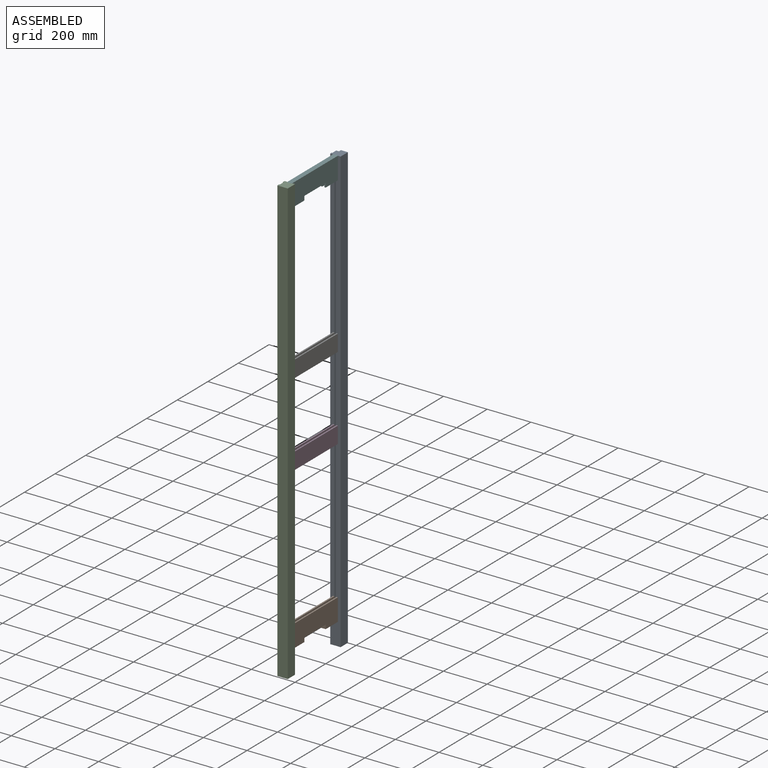
[diagram: assembled view]
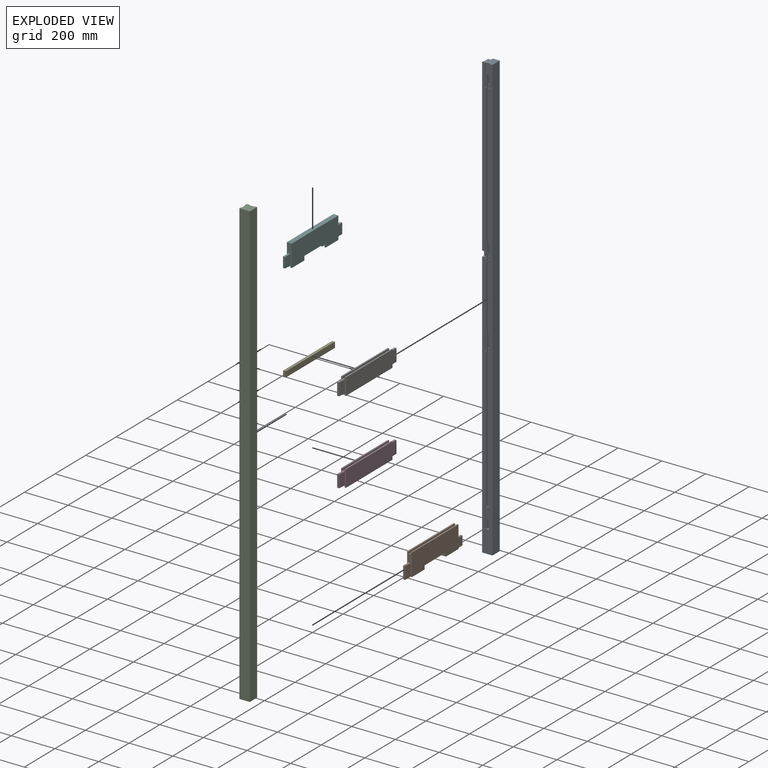
[diagram: exploded view]
GUIDED TOUR — MATED ASSEMBLY (Onshape document 7fe68d51b34048f1ba33e2a8, AutoMate assembly 7fe68d51b34048f1ba33e2a8_31bccd2d52288307c3215066_82dafb1759c48a622dc0e3d0_default)

This assembly has 7 components, labeled P0..P6 below (a component is one placed occurrence of a part; the same part can appear more than once), held together by 6 mates. A mate is a constraint between two components; its type names the relative motion it leaves free:
  FASTENED — locks the two components together rigidly (no relative motion).
Axis/direction vectors are unit vectors and 'through' points are millimeter coordinates, both in the assembly's world frame.

MATES
  1. FASTENED "Fastened 5": P1 <-> P0, direction (0.000, 1.000, 0.000) through (-23.81, 336.55, 122.24) mm
  2. FASTENED "Fastened 3": P6 <-> P2, direction (0.000, -1.000, 0.000) through (-23.81, -38.10, 1257.30) mm
  3. FASTENED "Fastened 4": P5 <-> P2, direction (0.000, -1.000, 0.000) through (-23.81, -38.10, 1963.74) mm
  4. FASTENED "Fastened 1": P1 <-> P2, direction (0.000, -1.000, 0.000) through (-23.81, -38.10, 130.17) mm
  5. FASTENED "Fastened 2": P3 <-> P2, direction (0.000, -1.000, 0.000) through (-23.81, -38.10, 876.30) mm
  6. FASTENED "Fastened 6": P4 <-> P0, direction (1.000, 0.000, 0.000) through (-41.27, 311.15, 1225.55) mm

ASSEMBLY ORDER
  1. P4 — the base component [order verified]
  2. P0 [order verified]
  3. P2 [order verified]
  4. P5 [order verified]
  5. P6 [order verified]
  6. P3 [order verified]
  7. P1 [order verified]
Order-tag legend:
  [order verified] — this step's position reverses a verified removal order: the component was checked to insert without passing through the ones already placed.

Of the 7 components, 4 carry the full construction recipe — the FeatureScript program that regenerates the part's solid from scratch; the rest are supplied as boundary geometry only.
Each toured component is shown spotlighted twice — in the assembled view, then in the exploded view, where a leader line traces a displaced component back to its assembled socket (saturated green if recipe-attached, orange if geometry-only; every other component desaturated gray) — followed by its recipe or geometry summary and the mates that hold it.
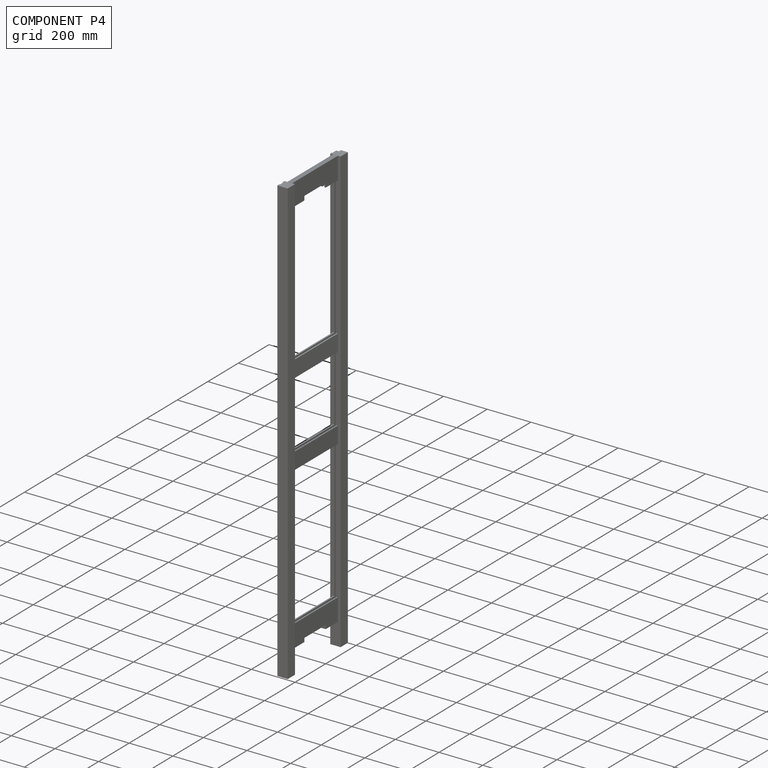
[diagram: component P4 — assembled]
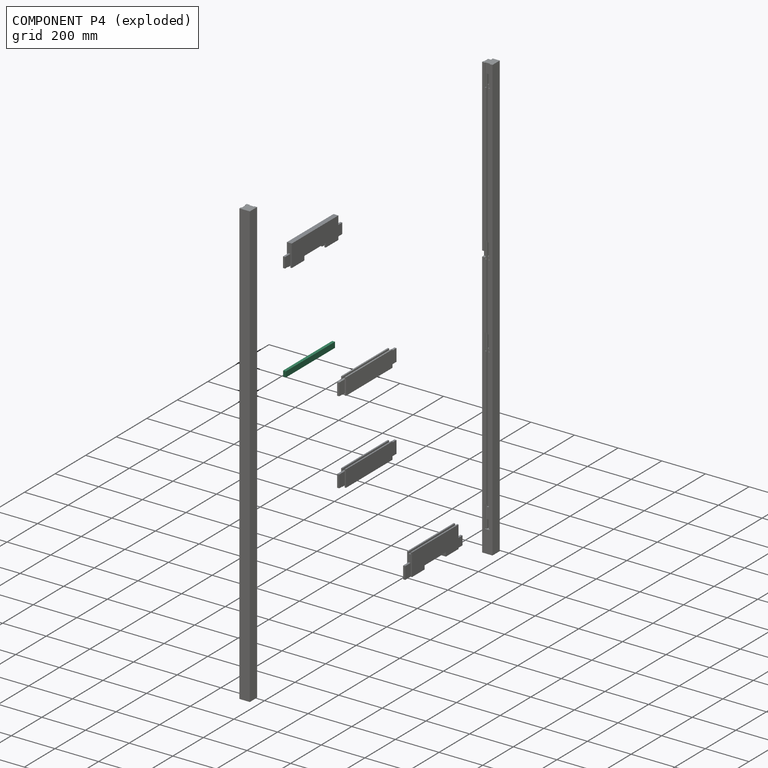
[diagram: component P4 — exploded]
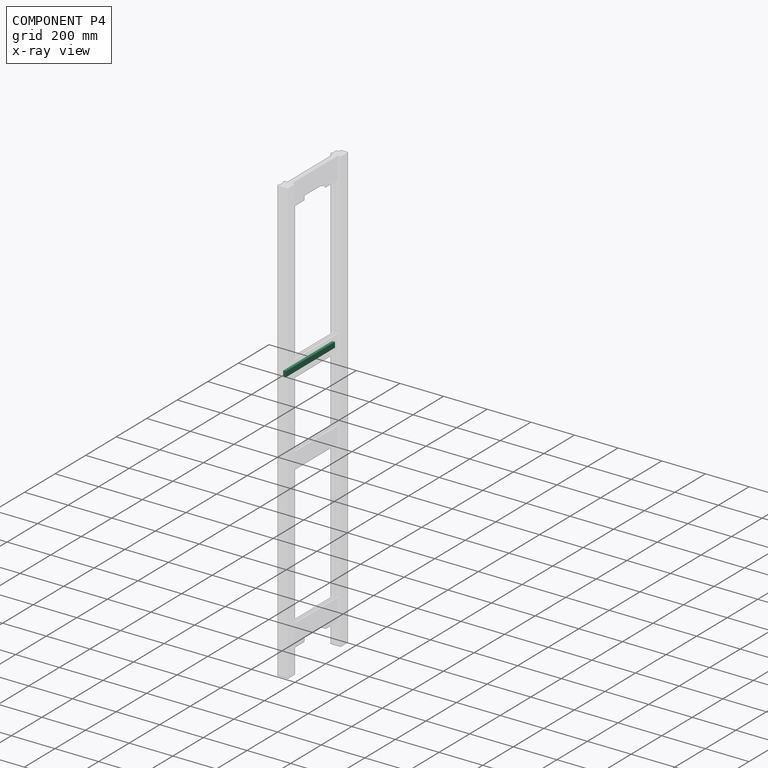
[diagram: component P4 — x-ray view]
COMPONENT P4 — recipe-attached (CADFS 00145059, mesh-verified: the recipe's output STEP matches this component's geometry to below the mesh-comparison resolution (tessellation chordal tolerance ~0.483 mm)).
Held by: FASTENED mate "Fastened 6" to P0.
Construction recipe (FeatureScript — the CAD program that rebuilds this solid; sketch coordinates are in the units given by the * unit suffixes, e.g. mm):

FeatureScript 2581;
import(path : "onshape/std/geometry.fs", version : "2581.0");
import(path : "onshape/std/common.fs", version : "2581.0");
const mm = millimeter;
const VERTEX = EntityType.VERTEX;
const EDGE = EntityType.EDGE;
const FACE = EntityType.FACE;
const BODY = EntityType.BODY;
function v(x, y){return vector(x, y);}
function OD(order){return orderDisambiguation(order);}
function OSD(set){return originalSetDisambiguation(set);}
function TD(topology){return topologyDisambiguation(topology);}
function TDD(query){return trueDependencyDisambiguation(query);}
function sQuery(a, b, c) {return sketchEntityQuery(a, b, c);}

annotation { "Feature Type Name" : "Feature", "Feature Type Description" : "" }
export const myFeature = defineFeature(function(context is Context, id is Id, definition is map)
    precondition{}
    {
        {
            var Q0;
            Q0=qCreatedBy(makeId("Front.planeOp"),FACE);
            var sketch = newSketch(context, id + "F0", { "sketchPlane" : qUnion([Q0])});
            skLineSegment(sketch, "E0.bottom", {"start": v(0, 0) * mm, "end": v(12.7, 0) * mm});
            skLineSegment(sketch, "E0.top", {"start": v(0, 25.4) * mm, "end": v(12.7, 25.4) * mm});
            skLineSegment(sketch, "E0.left", {"start": v(0, 0) * mm, "end": v(0, 25.4) * mm});
            skLineSegment(sketch, "E0.right", {"start": v(12.7, 0) * mm, "end": v(12.7, 25.4) * mm});
            skSolve(sketch);
        }
        {
            var Q0;
            Q0=makeQuery(id+"F0.imprint","IMPRINT",FACE,{"disambiguationData":[TD([[makeQuery(id+"F0.imprint","IMPRINT",EDGE,{"derivedFrom":sQuery(id+"F0.wireOp",EDGE,"E0.bottom")}),1.0]])]});
            extrude(context, id + "F1", {"entities" : qUnion([Q0]), "depth" : 320.67 * mm});
        }
    });
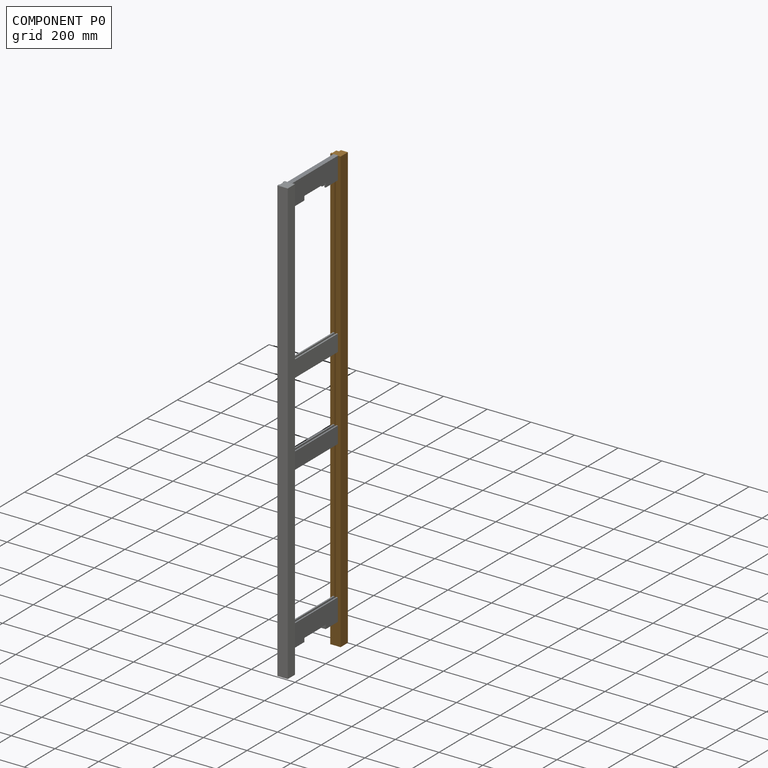
[diagram: component P0 — assembled]
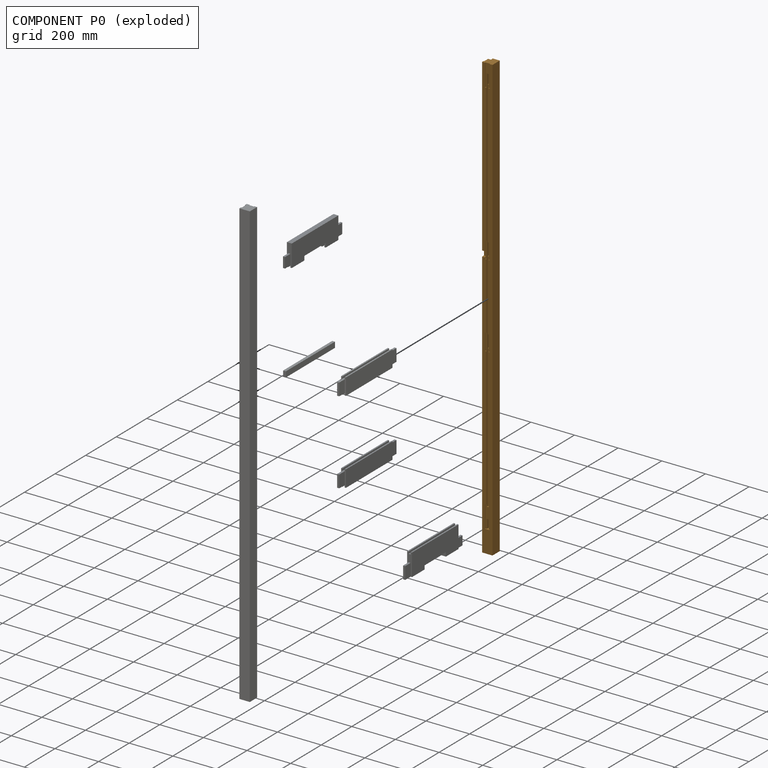
[diagram: component P0 — exploded]
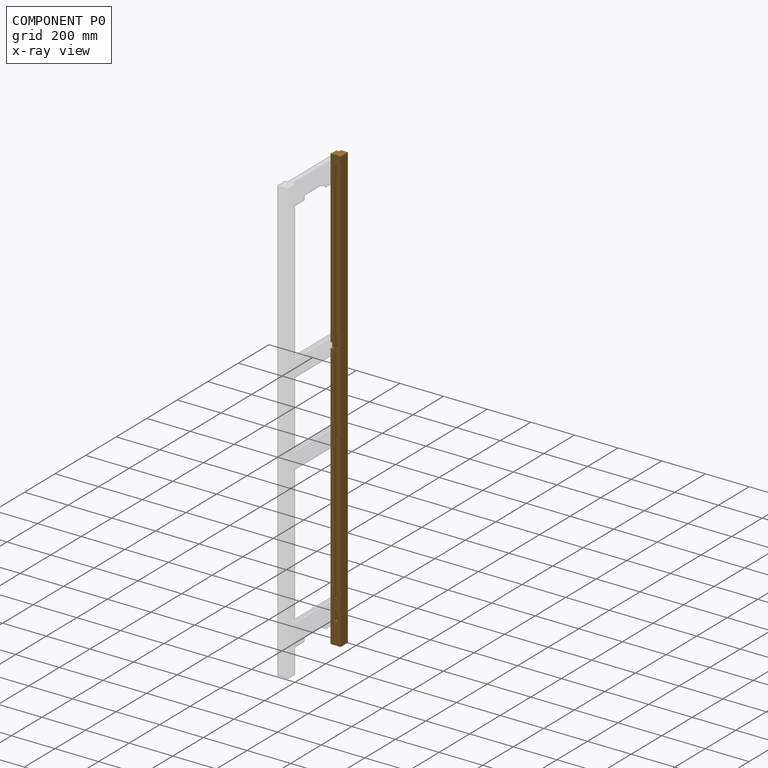
[diagram: component P0 — x-ray view]
COMPONENT P0 — geometry summary (no construction recipe available for this part):
  bounding box: 2032.0 x 47.6 x 47.6 mm
  B-rep topology: 1 solid, 91 faces, 519 edges
  volume: 3940840 mm^3 (86% of its bounding box)
Held by: FASTENED mate "Fastened 5" to P1; FASTENED mate "Fastened 6" to P4.
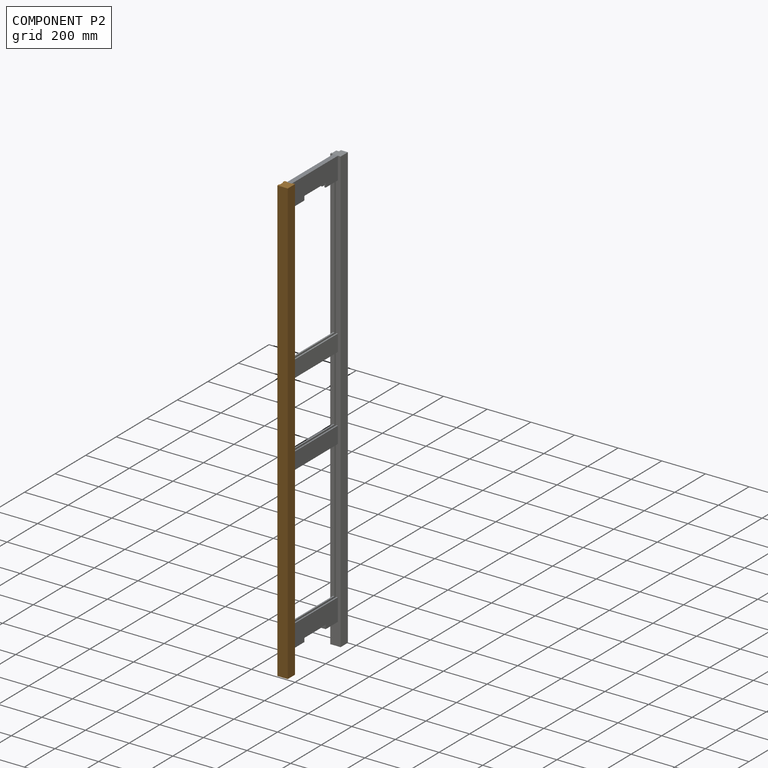
[diagram: component P2 — assembled]
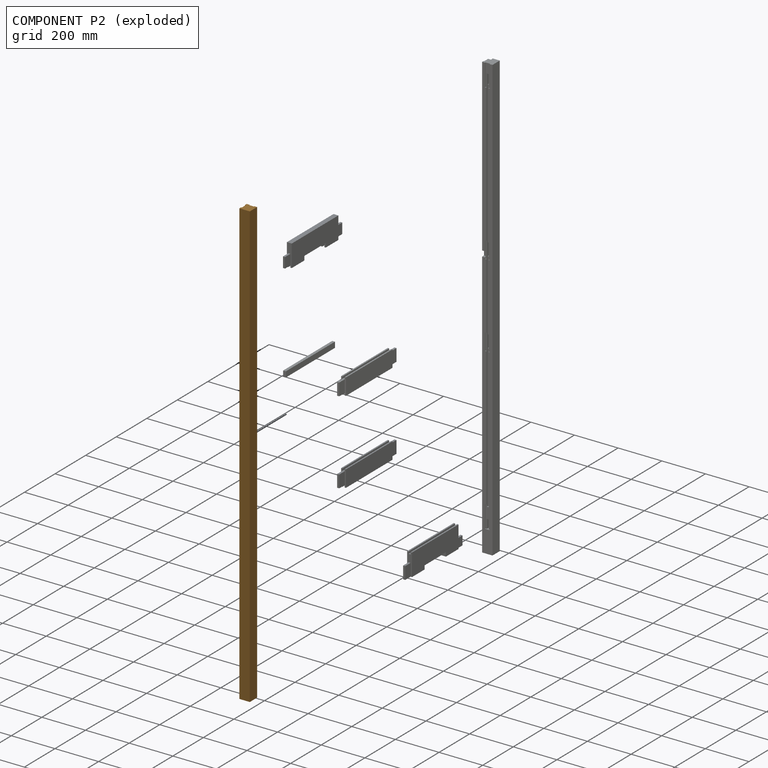
[diagram: component P2 — exploded]
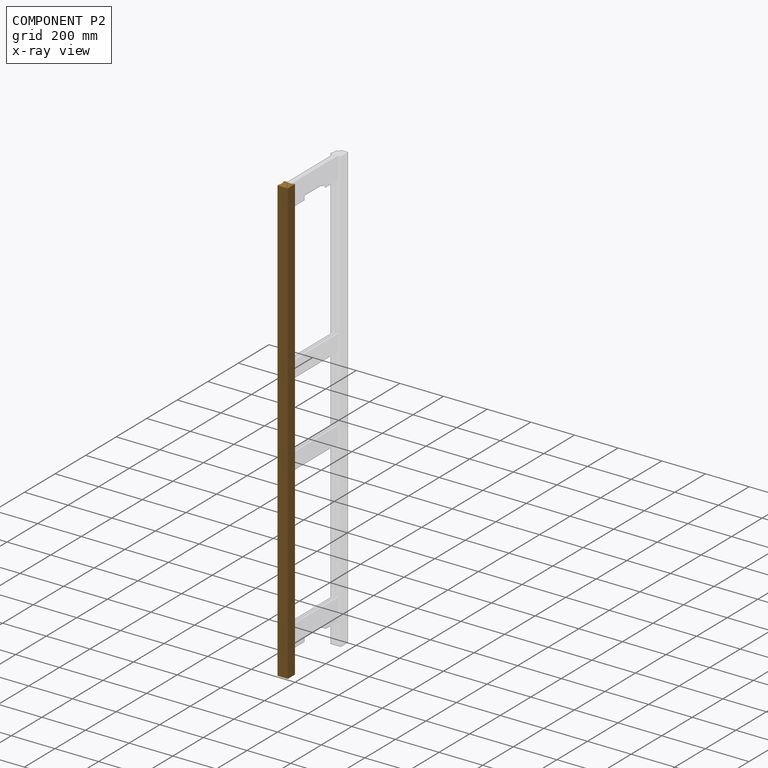
[diagram: component P2 — x-ray view]
COMPONENT P2 — geometry summary (no construction recipe available for this part):
  bounding box: 2032.0 x 47.6 x 47.6 mm
  B-rep topology: 1 solid, 88 faces, 494 edges
  volume: 4115515 mm^3 (89% of its bounding box)
  symmetry: 6-fold rotationally symmetric about the z axis; mirror-symmetric across its x mid-plane, y mid-plane
Held by: FASTENED mate "Fastened 3" to P6; FASTENED mate "Fastened 4" to P5; FASTENED mate "Fastened 1" to P1; FASTENED mate "Fastened 2" to P3.
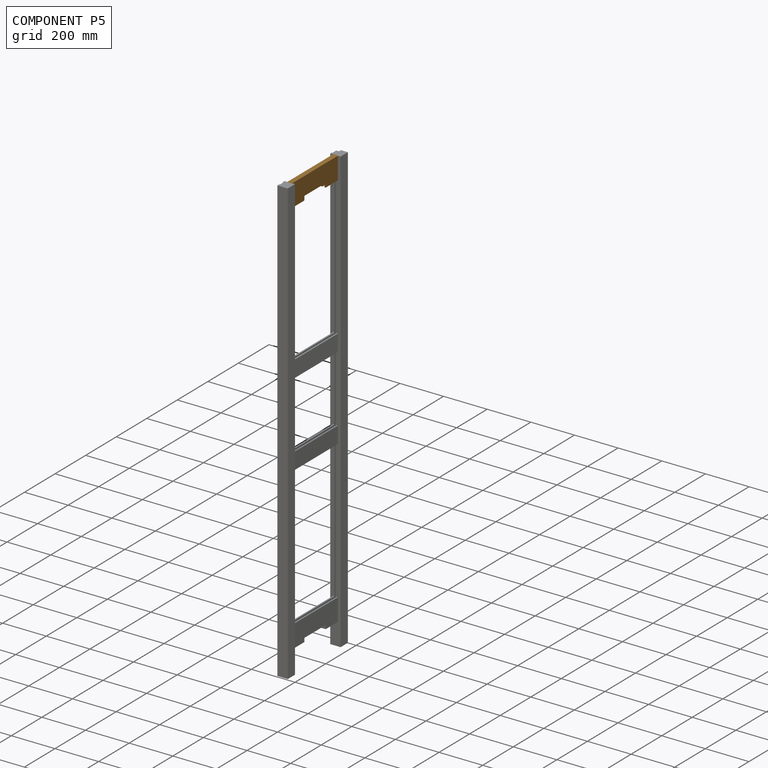
[diagram: component P5 — assembled]
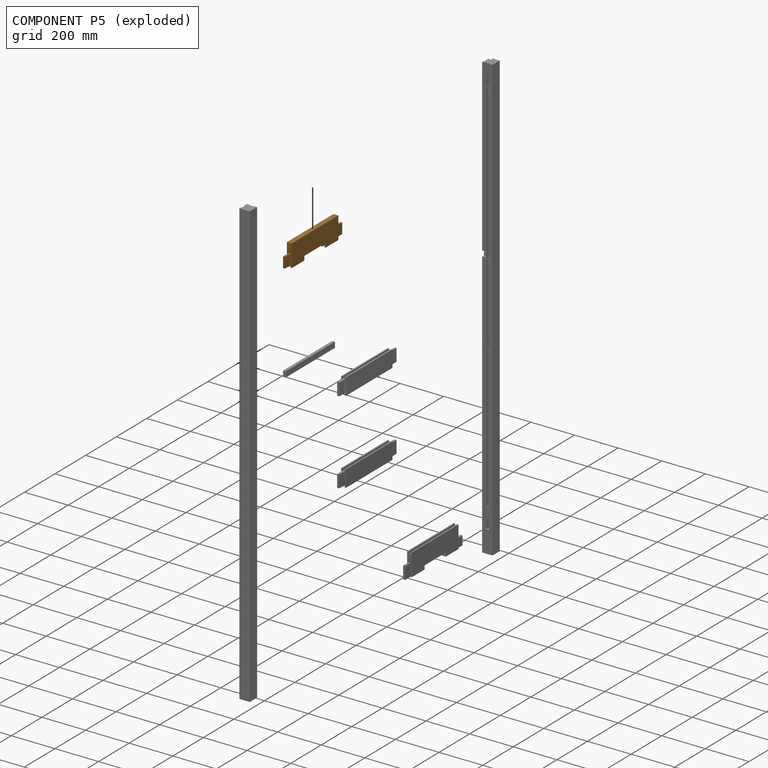
[diagram: component P5 — exploded]
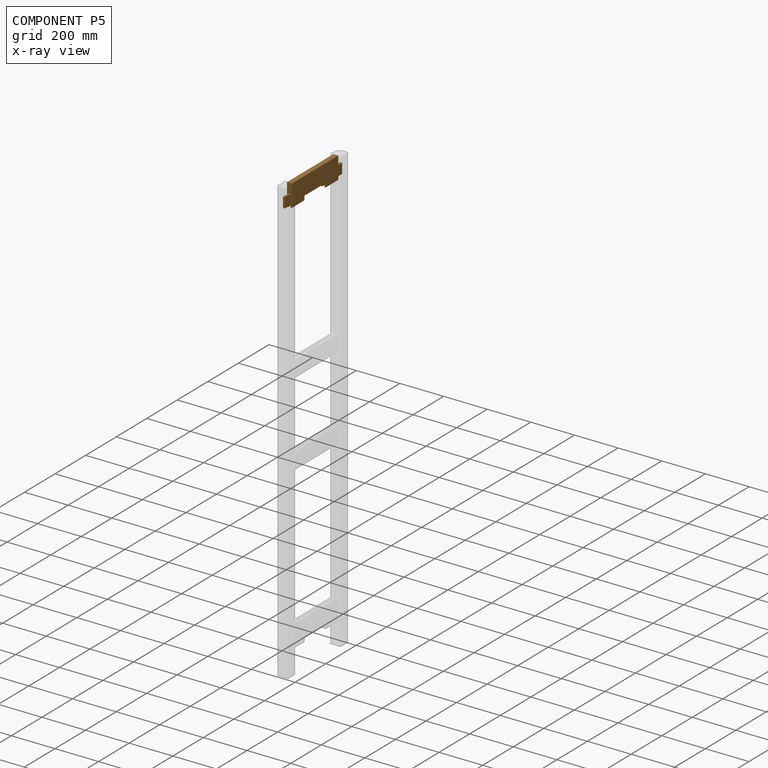
[diagram: component P5 — x-ray view]
COMPONENT P5 — geometry summary (no construction recipe available for this part):
  bounding box: 374.7 x 101.6 x 22.2 mm
  B-rep topology: 1 solid, 30 faces, 160 edges
  volume: 629686 mm^3 (74% of its bounding box)
  symmetry: 2-fold rotationally symmetric about the z axis; mirror-symmetric across its x mid-plane, y mid-plane
Held by: FASTENED mate "Fastened 4" to P2.
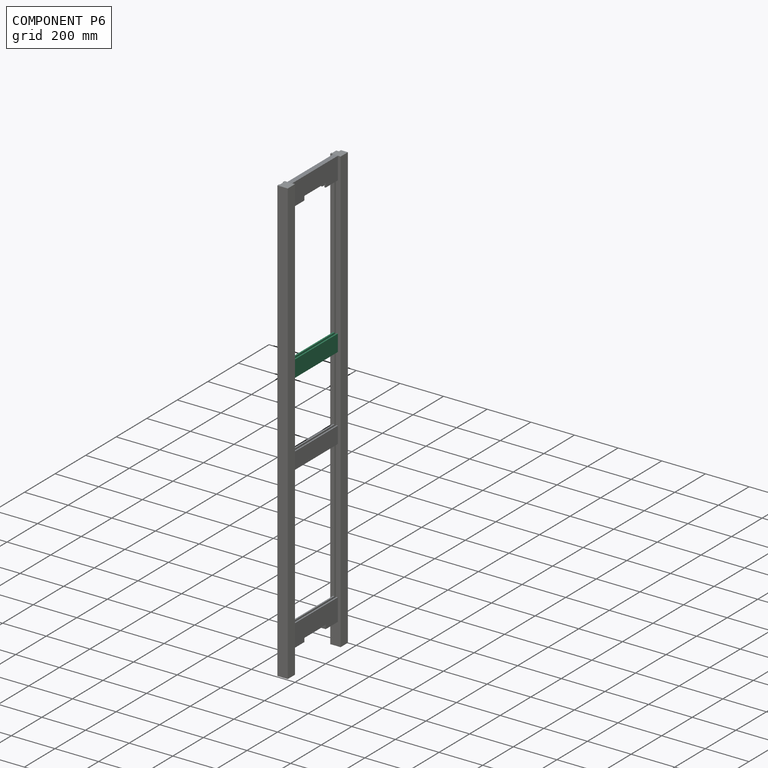
[diagram: component P6 — assembled]
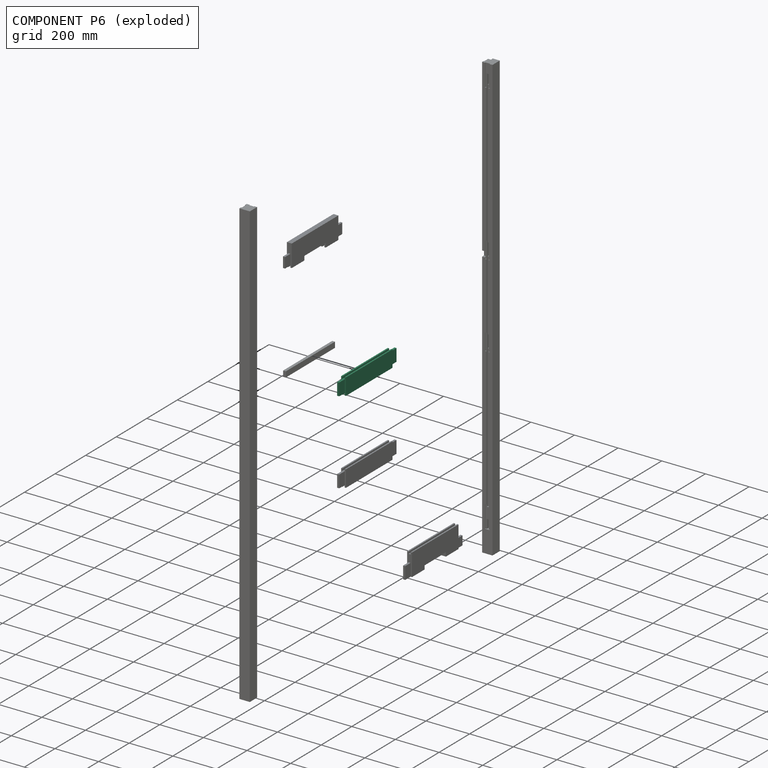
[diagram: component P6 — exploded]
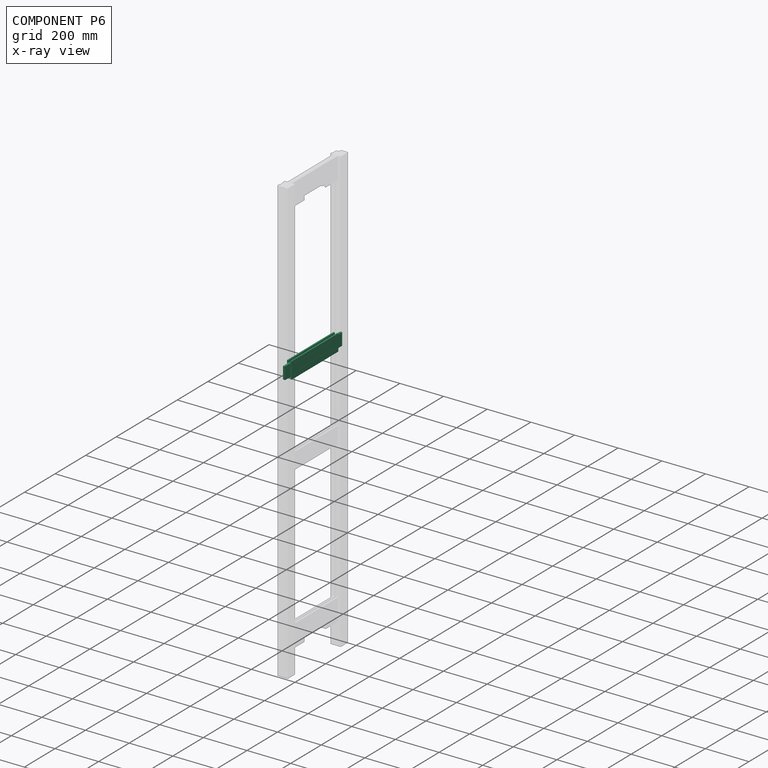
[diagram: component P6 — x-ray view]
COMPONENT P6 — same part as P3 (CADFS 00145066); its construction recipe is shown at P3.
Held by: FASTENED mate "Fastened 3" to P2.
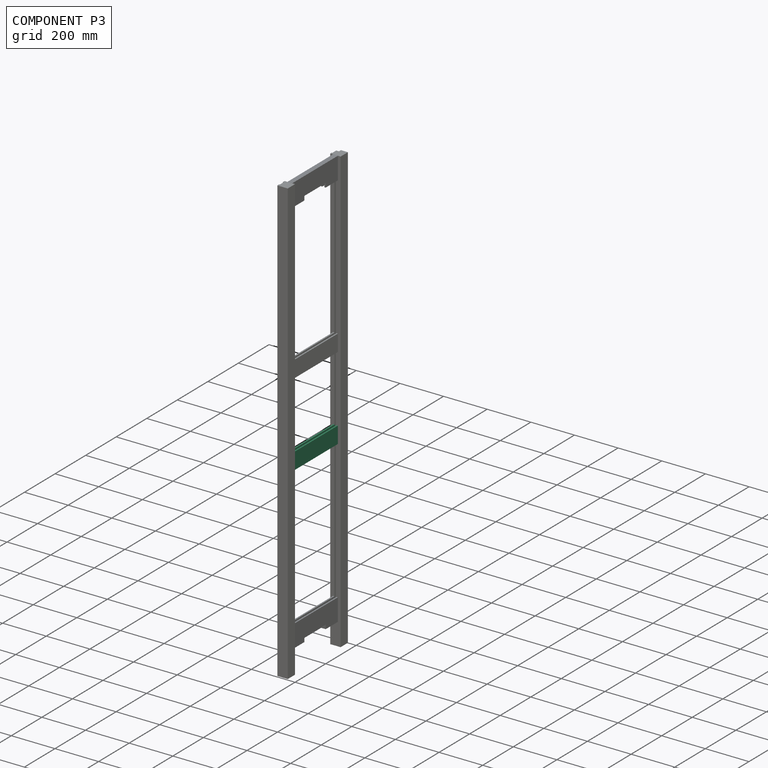
[diagram: component P3 — assembled]
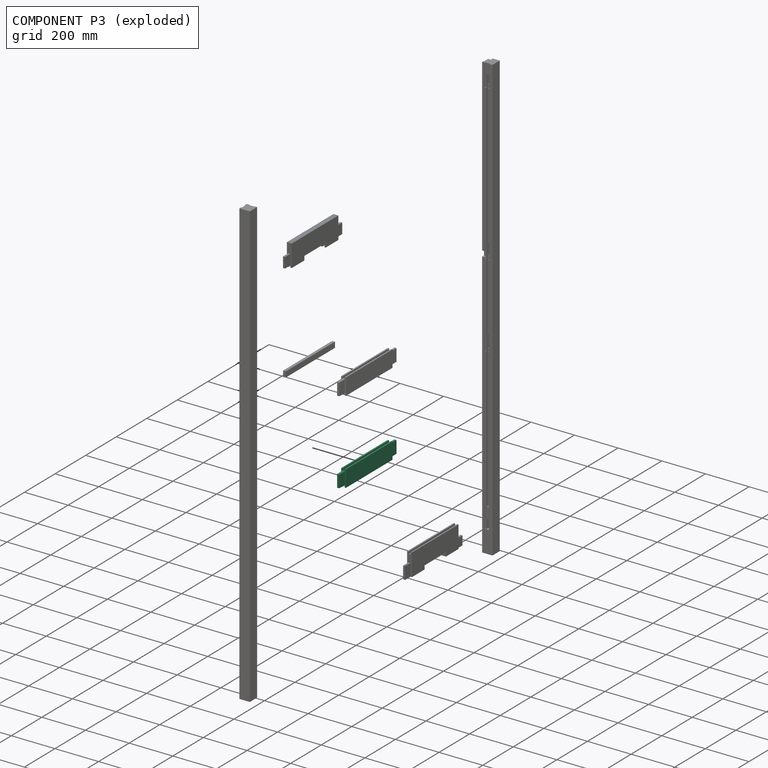
[diagram: component P3 — exploded]
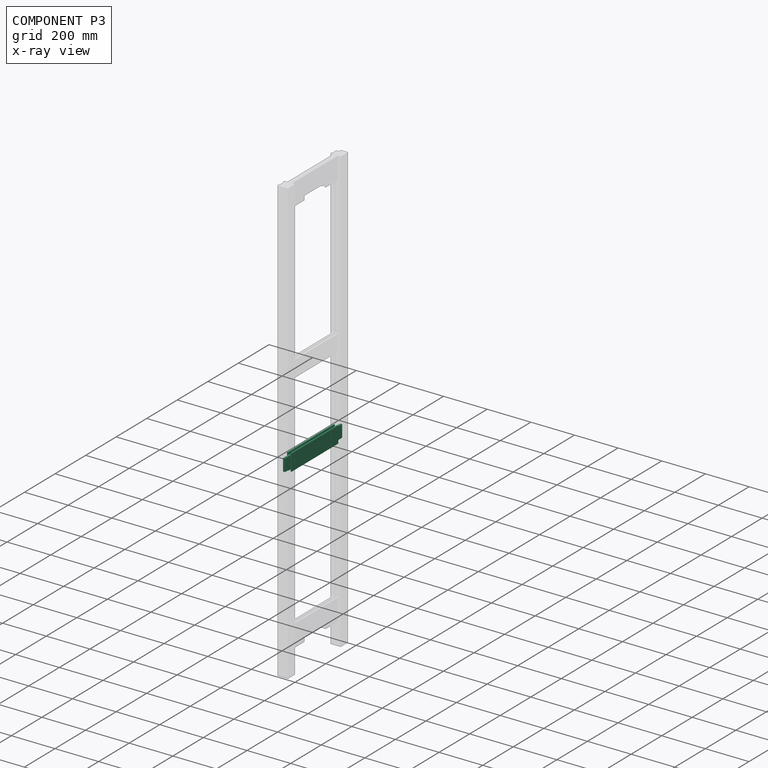
[diagram: component P3 — x-ray view]
COMPONENT P3 — recipe-attached (CADFS 00145066, mesh-verified: the recipe's output STEP matches this component's geometry to below the mesh-comparison resolution (tessellation chordal tolerance ~0.574 mm)).
Held by: FASTENED mate "Fastened 2" to P2.
Construction recipe (FeatureScript — the CAD program that rebuilds this solid; sketch coordinates are in the units given by the * unit suffixes, e.g. mm):

FeatureScript 2581;
import(path : "onshape/std/geometry.fs", version : "2581.0");
import(path : "onshape/std/common.fs", version : "2581.0");
const mm = millimeter;
const VERTEX = EntityType.VERTEX;
const EDGE = EntityType.EDGE;
const FACE = EntityType.FACE;
const BODY = EntityType.BODY;
function v(x, y){return vector(x, y);}
function OD(order){return orderDisambiguation(order);}
function OSD(set){return originalSetDisambiguation(set);}
function TD(topology){return topologyDisambiguation(topology);}
function TDD(query){return trueDependencyDisambiguation(query);}
function sQuery(a, b, c) {return sketchEntityQuery(a, b, c);}

annotation { "Feature Type Name" : "Feature", "Feature Type Description" : "" }
export const myFeature = defineFeature(function(context is Context, id is Id, definition is map)
    precondition{}
    {
        {
            var Q0;
            Q0=qCreatedBy(makeId("Front.planeOp"),FACE);
            var sketch = newSketch(context, id + "F0", { "sketchPlane" : qUnion([Q0])});
            skLineSegment(sketch, "E0.bottom", {"start": v(0, 0) * mm, "end": v(374.65, 0) * mm});
            skLineSegment(sketch, "E0.top", {"start": v(0, 76.2) * mm, "end": v(374.65, 76.2) * mm});
            skLineSegment(sketch, "E0.left", {"start": v(0, 0) * mm, "end": v(0, 76.2) * mm});
            skLineSegment(sketch, "E0.right", {"start": v(374.65, 0) * mm, "end": v(374.65, 76.2) * mm});
            skSolve(sketch);
        }
        {
            var Q0;
            Q0=makeQuery(id+"F0.imprint","IMPRINT",FACE,{"disambiguationData":[TD([[makeQuery(id+"F0.imprint","IMPRINT",EDGE,{"derivedFrom":sQuery(id+"F0.wireOp",EDGE,"E0.bottom")}),1.0]])]});
            extrude(context, id + "F1", {"entities" : qUnion([Q0]), "depth" : 22.22 * mm});
        }
        {
            var Q0;
            Q0=makeQuery(id+"F1.opExtrude","SWEPT_FACE",FACE,{"disambiguationData":[OSD([sQuery(id+"F0.wireOp",EDGE,"E0.top")])]});
            var sketch = newSketch(context, id + "F2", { "sketchPlane" : qUnion([Q0])});
            skLineSegment(sketch, "E1.bottom", {"start": v(0, 0) * mm, "end": v(34.93, 0) * mm});
            skLineSegment(sketch, "E1.top", {"start": v(0, -6.35) * mm, "end": v(34.93, -6.35) * mm});
            skLineSegment(sketch, "E1.left", {"start": v(0, 0) * mm, "end": v(0, -6.35) * mm});
            skLineSegment(sketch, "E1.right", {"start": v(34.93, 0) * mm, "end": v(34.93, -6.35) * mm});
            skLineSegment(sketch, "E2.bottom", {"start": v(0, -22.23) * mm, "end": v(34.93, -22.23) * mm});
            skLineSegment(sketch, "E2.top", {"start": v(0, -15.88) * mm, "end": v(34.93, -15.88) * mm});
            skLineSegment(sketch, "E2.left", {"start": v(0, -22.23) * mm, "end": v(0, -15.88) * mm});
            skLineSegment(sketch, "E2.right", {"start": v(34.93, -22.23) * mm, "end": v(34.93, -15.88) * mm});
            skLineSegment(sketch, "E3.bottom", {"start": v(339.73, -6.35) * mm, "end": v(374.65, -6.35) * mm});
            skLineSegment(sketch, "E3.top", {"start": v(339.73, 0) * mm, "end": v(374.65, 0) * mm});
            skLineSegment(sketch, "E3.left", {"start": v(339.73, -6.35) * mm, "end": v(339.73, 0) * mm});
            skLineSegment(sketch, "E3.right", {"start": v(374.65, -6.35) * mm, "end": v(374.65, 0) * mm});
            skLineSegment(sketch, "E4.bottom", {"start": v(339.73, -15.87) * mm, "end": v(374.65, -15.87) * mm});
            skLineSegment(sketch, "E4.top", {"start": v(339.73, -22.23) * mm, "end": v(374.65, -22.23) * mm});
            skLineSegment(sketch, "E4.left", {"start": v(339.73, -15.87) * mm, "end": v(339.73, -22.23) * mm});
            skLineSegment(sketch, "E4.right", {"start": v(374.65, -15.87) * mm, "end": v(374.65, -22.23) * mm});
            skLineSegment(sketch, "E5", {"start": v(34.93, -6.35) * mm, "end": v(339.73, -6.35) * mm});
            skLineSegment(sketch, "E6", {"start": v(34.93, -15.88) * mm, "end": v(339.73, -15.87) * mm});
            skLineSegment(sketch, "E7", {"start": v(34.93, -6.35) * mm, "end": v(34.93, -15.88) * mm});
            skLineSegment(sketch, "E8", {"start": v(339.73, -6.35) * mm, "end": v(339.73, -15.87) * mm});
            skSolve(sketch);
        }
        {
            var Q0;
            Q0=makeQuery(id+"F2.imprint","IMPRINT",FACE,{"disambiguationData":[TD([[makeQuery(id+"F2.imprint","IMPRINT",EDGE,{"derivedFrom":sQuery(id+"F2.wireOp",EDGE,"E1.bottom")}),-1.0]])]});
            var Q1;
            Q1=makeQuery(id+"F2.imprint","IMPRINT",FACE,{"disambiguationData":[TD([[makeQuery(id+"F2.imprint","IMPRINT",EDGE,{"derivedFrom":sQuery(id+"F2.wireOp",EDGE,"E2.bottom")}),1.0]])]});
            var Q2;
            Q2=makeQuery(id+"F2.imprint","IMPRINT",FACE,{"disambiguationData":[TD([[makeQuery(id+"F2.imprint","IMPRINT",EDGE,{"derivedFrom":sQuery(id+"F2.wireOp",EDGE,"E3.bottom")}),1.0]])]});
            var Q3;
            Q3=makeQuery(id+"F2.imprint","IMPRINT",FACE,{"disambiguationData":[TD([[makeQuery(id+"F2.imprint","IMPRINT",EDGE,{"derivedFrom":sQuery(id+"F2.wireOp",EDGE,"E4.bottom")}),-1.0]])]});
            extrude(context, id + "F3", {"entities" : qUnion([Q0, Q1, Q2, Q3]), "operationType" : NewBodyOperationType.REMOVE, "endBound" : BoundingType.UP_TO_NEXT, "oppositeDirection" : true, "depth" : 25.4 * mm});
        }
        {
            var Q0;
            Q0=makeQuery(id+"F1.opExtrude","SWEPT_FACE",FACE,{"disambiguationData":[OSD([sQuery(id+"F0.wireOp",EDGE,"E0.left")])]});
            var sketch = newSketch(context, id + "F4", { "sketchPlane" : qUnion([Q0])});
            skLineSegment(sketch, "E9.bottom", {"start": v(6.35, 0) * mm, "end": v(15.88, 0) * mm});
            skLineSegment(sketch, "E9.top", {"start": v(6.35, 9.53) * mm, "end": v(15.88, 9.53) * mm});
            skLineSegment(sketch, "E9.left", {"start": v(6.35, 0) * mm, "end": v(6.35, 9.53) * mm});
            skLineSegment(sketch, "E9.right", {"start": v(15.88, 0) * mm, "end": v(15.88, 9.52) * mm});
            skLineSegment(sketch, "E10.bottom", {"start": v(6.35, 76.2) * mm, "end": v(15.88, 76.2) * mm});
            skLineSegment(sketch, "E10.top", {"start": v(6.35, 66.67) * mm, "end": v(15.88, 66.67) * mm});
            skLineSegment(sketch, "E10.left", {"start": v(6.35, 76.2) * mm, "end": v(6.35, 66.67) * mm});
            skLineSegment(sketch, "E10.right", {"start": v(15.88, 76.2) * mm, "end": v(15.88, 66.67) * mm});
            skSolve(sketch);
        }
        {
            var Q0;
            Q0=makeQuery(id+"F4.imprint","IMPRINT",FACE,{"disambiguationData":[TD([[makeQuery(id+"F4.imprint","IMPRINT",EDGE,{"derivedFrom":sQuery(id+"F4.wireOp",EDGE,"E10.bottom")}),1.0]])]});
            var Q1;
            Q1=makeQuery(id+"F4.imprint","IMPRINT",FACE,{"disambiguationData":[TD([[makeQuery(id+"F4.imprint","IMPRINT",EDGE,{"derivedFrom":sQuery(id+"F4.wireOp",EDGE,"E9.bottom")}),-1.0]])]});
            extrude(context, id + "F5", {"entities" : qUnion([Q0, Q1]), "operationType" : NewBodyOperationType.REMOVE, "endBound" : BoundingType.UP_TO_NEXT, "oppositeDirection" : true, "depth" : 25.4 * mm});
        }
    });
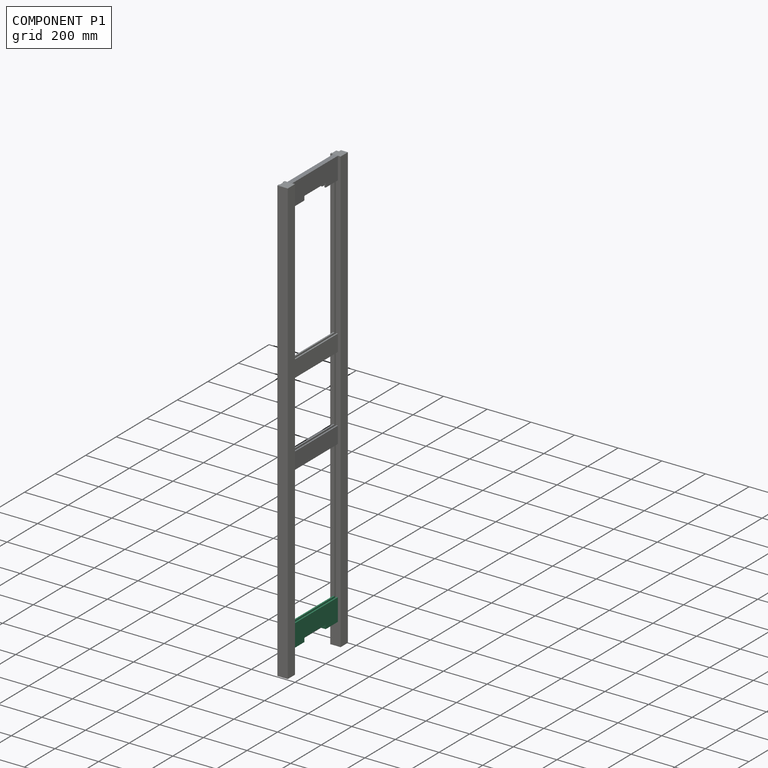
[diagram: component P1 — assembled]
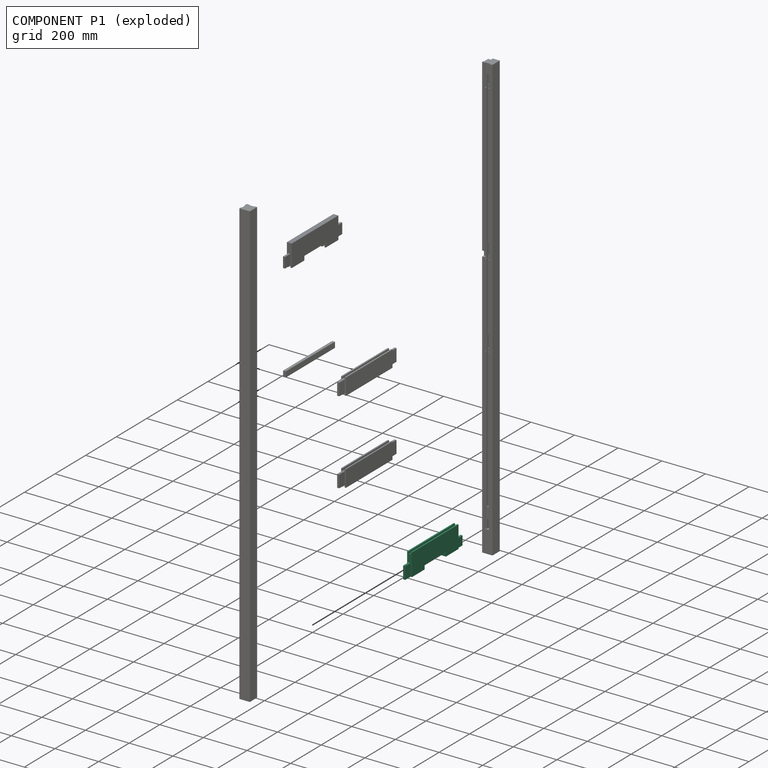
[diagram: component P1 — exploded]
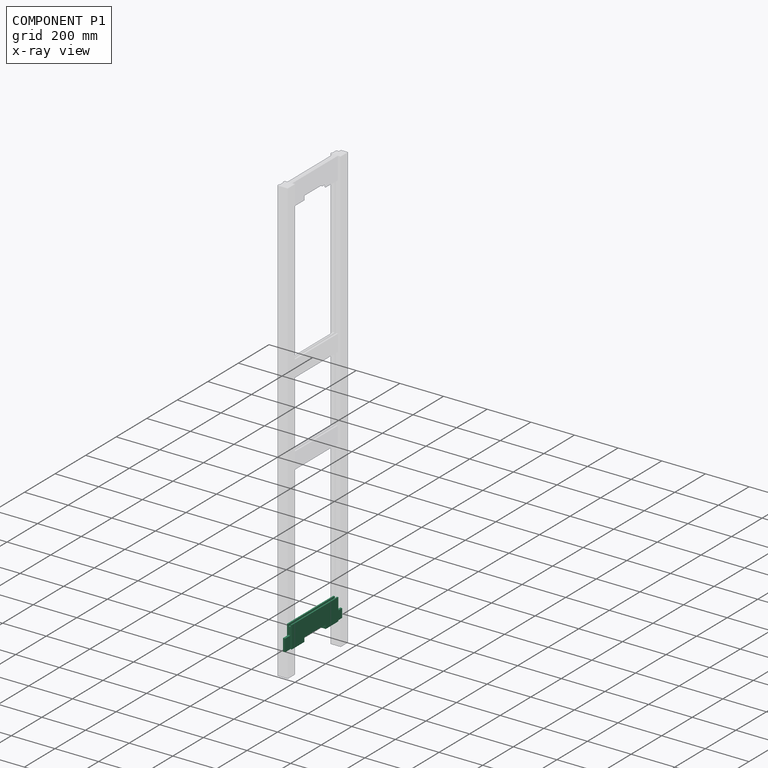
[diagram: component P1 — x-ray view]
COMPONENT P1 — recipe-attached (CADFS 00145067, mesh-verified: the recipe's output STEP matches this component's geometry to below the mesh-comparison resolution (tessellation chordal tolerance ~0.583 mm)).
Held by: FASTENED mate "Fastened 5" to P0; FASTENED mate "Fastened 1" to P2.
Construction recipe (FeatureScript — the CAD program that rebuilds this solid; sketch coordinates are in the units given by the * unit suffixes, e.g. mm):

FeatureScript 2581;
import(path : "onshape/std/geometry.fs", version : "2581.0");
import(path : "onshape/std/common.fs", version : "2581.0");
const mm = millimeter;
const VERTEX = EntityType.VERTEX;
const EDGE = EntityType.EDGE;
const FACE = EntityType.FACE;
const BODY = EntityType.BODY;
function v(x, y){return vector(x, y);}
function OD(order){return orderDisambiguation(order);}
function OSD(set){return originalSetDisambiguation(set);}
function TD(topology){return topologyDisambiguation(topology);}
function TDD(query){return trueDependencyDisambiguation(query);}
function sQuery(a, b, c) {return sketchEntityQuery(a, b, c);}

annotation { "Feature Type Name" : "Feature", "Feature Type Description" : "" }
export const myFeature = defineFeature(function(context is Context, id is Id, definition is map)
    precondition{}
    {
        {
            var Q0;
            Q0=qCreatedBy(makeId("Right.planeOp"),FACE);
            var sketch = newSketch(context, id + "F0", { "sketchPlane" : qUnion([Q0])});
            skLineSegment(sketch, "E0.bottom", {"start": v(0, 0) * mm, "end": v(374.65, 0) * mm});
            skLineSegment(sketch, "E0.top", {"start": v(0, 101.6) * mm, "end": v(374.65, 101.6) * mm});
            skLineSegment(sketch, "E0.left", {"start": v(0, 0) * mm, "end": v(0, 101.6) * mm});
            skLineSegment(sketch, "E0.right", {"start": v(374.65, 0) * mm, "end": v(374.65, 101.6) * mm});
            skSolve(sketch);
        }
        {
            var Q0;
            Q0=makeQuery(id+"F0.imprint","IMPRINT",FACE,{"disambiguationData":[TD([[makeQuery(id+"F0.imprint","IMPRINT",EDGE,{"derivedFrom":sQuery(id+"F0.wireOp",EDGE,"E0.bottom")}),1.0]])]});
            extrude(context, id + "F1", {"entities" : qUnion([Q0]), "depth" : 22.22 * mm, "offsetDistance" : 25.4 * mm});
        }
        {
            var Q0;
            Q0=makeQuery(id+"F1.opExtrude","SWEPT_FACE",FACE,{"disambiguationData":[OSD([sQuery(id+"F0.wireOp",EDGE,"E0.top")])]});
            var sketch = newSketch(context, id + "F2", { "sketchPlane" : qUnion([Q0])});
            skLineSegment(sketch, "E1.bottom", {"start": v(15.87, 374.65) * mm, "end": v(6.35, 374.65) * mm});
            skLineSegment(sketch, "E1.top", {"start": v(15.88, 0) * mm, "end": v(6.35, 0) * mm});
            skLineSegment(sketch, "E1.left", {"start": v(15.87, 374.65) * mm, "end": v(15.88, 0) * mm});
            skLineSegment(sketch, "E1.right", {"start": v(6.35, 374.65) * mm, "end": v(6.35, 0) * mm});
            skLineSegment(sketch, "E2", {"start": v(22.23, 339.73) * mm, "end": v(0, 339.73) * mm});
            skLineSegment(sketch, "E3", {"start": v(22.23, 34.93) * mm, "end": v(0, 34.93) * mm});
            skSolve(sketch);
        }
        {
            var Q0;
            {var subQ0=sQuery(id+"F2.wireOp",EDGE,"E1.bottom");Q0=makeQuery(id+"F2.imprint","IMPRINT",FACE,{"disambiguationData":[TD([[makeQuery(id+"F2.imprint","IMPRINT",EDGE,{"derivedFrom":subQ0}),1.0]])]});}
            var Q1;
            {var subQ0=sQuery(id+"F2.wireOp",EDGE,"E2");var subQ1=sQuery(id+"F2.wireOp",EDGE,"E1.left");var subQ2=makeQuery(id+"F2.imprint","INTERSECT",VERTEX,{"derivedFrom":[subQ1,subQ0]});Q1=makeQuery(id+"F2.imprint","IMPRINT",FACE,{"disambiguationData":[TD([[makeQuery(id+"F2.imprint","IMPRINT",EDGE,{"disambiguationData":[TD([[subQ2,-1.0]])],"derivedFrom":subQ1}),-1.0]])]});}
            var Q2;
            {var subQ0=sQuery(id+"F2.wireOp",EDGE,"E1.top");Q2=makeQuery(id+"F2.imprint","IMPRINT",FACE,{"disambiguationData":[TD([[makeQuery(id+"F2.imprint","IMPRINT",EDGE,{"derivedFrom":subQ0}),-1.0]])]});}
            extrude(context, id + "F3", {"entities" : qUnion([Q0, Q1, Q2]), "operationType" : NewBodyOperationType.REMOVE, "oppositeDirection" : true, "depth" : 9.52 * mm});
        }
        {
            var Q0;
            {var subQ1=sQuery(id+"F0.wireOp",EDGE,"E0.top");var subQ4=sQuery(id+"F2.wireOp",EDGE,"E2");var subQ6=makeQuery(id+"F1.opExtrude","CAP_EDGE",EDGE,{"disambiguationData":[OSD([subQ1])],"isStart":false});var subQ7=makeQuery(id+"F2.imprint","INTERSECT",VERTEX,{"derivedFrom":[subQ6,subQ4]});Q0=makeQuery(id+"F2.imprint","IMPRINT",FACE,{"disambiguationData":[TD([[makeQuery(id+"F2.imprint","IMPRINT",EDGE,{"disambiguationData":[TD([[subQ7,-1.0]])],"derivedFrom":subQ4}),-1.0]])]});}
            var Q1;
            {var subQ1=sQuery(id+"F0.wireOp",EDGE,"E0.top");var subQ4=sQuery(id+"F2.wireOp",EDGE,"E2");var subQ6=makeQuery(id+"F1.opExtrude","CAP_EDGE",EDGE,{"disambiguationData":[OSD([subQ1])],"isStart":true});var subQ7=makeQuery(id+"F2.imprint","INTERSECT",VERTEX,{"derivedFrom":[subQ6,subQ4]});Q1=makeQuery(id+"F2.imprint","IMPRINT",FACE,{"disambiguationData":[TD([[makeQuery(id+"F2.imprint","IMPRINT",EDGE,{"disambiguationData":[TD([[subQ7,1.0]])],"derivedFrom":subQ4}),-1.0]])]});}
            var Q2;
            {var subQ1=sQuery(id+"F0.wireOp",EDGE,"E0.top");var subQ4=sQuery(id+"F2.wireOp",EDGE,"E3");var subQ6=makeQuery(id+"F1.opExtrude","CAP_EDGE",EDGE,{"disambiguationData":[OSD([subQ1])],"isStart":true});var subQ7=makeQuery(id+"F2.imprint","INTERSECT",VERTEX,{"derivedFrom":[subQ6,subQ4]});Q2=makeQuery(id+"F2.imprint","IMPRINT",FACE,{"disambiguationData":[TD([[makeQuery(id+"F2.imprint","IMPRINT",EDGE,{"disambiguationData":[TD([[subQ7,1.0]])],"derivedFrom":subQ4}),1.0]])]});}
            var Q3;
            {var subQ1=sQuery(id+"F0.wireOp",EDGE,"E0.top");var subQ4=sQuery(id+"F2.wireOp",EDGE,"E3");var subQ6=makeQuery(id+"F1.opExtrude","CAP_EDGE",EDGE,{"disambiguationData":[OSD([subQ1])],"isStart":false});var subQ8=makeQuery(id+"F2.imprint","INTERSECT",VERTEX,{"derivedFrom":[subQ6,subQ4]});Q3=makeQuery(id+"F2.imprint","IMPRINT",FACE,{"disambiguationData":[TD([[makeQuery(id+"F2.imprint","IMPRINT",EDGE,{"disambiguationData":[TD([[subQ8,-1.0]])],"derivedFrom":subQ4}),1.0]])]});}
            extrude(context, id + "F4", {"entities" : qUnion([Q0, Q1, Q2, Q3]), "operationType" : NewBodyOperationType.REMOVE, "endBound" : BoundingType.UP_TO_NEXT, "oppositeDirection" : true, "depth" : 25.4 * mm});
        }
        {
            var Q0;
            {var subQ0=sQuery(id+"F2.wireOp",EDGE,"E1.right");Q0=makeQuery(id+"F4.boolean.opBoolean","COPY",FACE,{"derivedFrom":makeQuery(id+"F4.opExtrude","SWEPT_FACE",FACE,{"disambiguationData":[OSD([subQ0]),TDD([makeQuery(id+"F2.imprint","IMPRINT",EDGE,{"disambiguationData":[TD([[makeQuery(id+"F2.imprint","INTERSECT",VERTEX,{"derivedFrom":[subQ0,sQuery(id+"F2.wireOp",EDGE,"E2")]}),1.0]])],"derivedFrom":subQ0})])]})});}
            var sketch = newSketch(context, id + "F5", { "sketchPlane" : qUnion([Q0])});
            skLineSegment(sketch, "E4.bottom", {"start": v(-374.65, 92.08) * mm, "end": v(-339.73, 92.08) * mm});
            skLineSegment(sketch, "E4.top", {"start": v(-374.65, 41.27) * mm, "end": v(-339.73, 41.28) * mm});
            skLineSegment(sketch, "E4.left", {"start": v(-374.65, 92.08) * mm, "end": v(-374.65, 41.28) * mm});
            skLineSegment(sketch, "E4.right", {"start": v(-339.73, 92.07) * mm, "end": v(-339.73, 41.28) * mm});
            skLineSegment(sketch, "E5.bottom", {"start": v(0, 92.08) * mm, "end": v(-34.93, 92.08) * mm});
            skLineSegment(sketch, "E5.top", {"start": v(0, 41.28) * mm, "end": v(-34.92, 41.28) * mm});
            skLineSegment(sketch, "E5.left", {"start": v(0, 92.08) * mm, "end": v(0, 41.28) * mm});
            skLineSegment(sketch, "E5.right", {"start": v(-34.93, 92.08) * mm, "end": v(-34.92, 41.28) * mm});
            skSolve(sketch);
        }
        {
            var Q0;
            Q0=makeQuery(id+"F5.imprint","IMPRINT",FACE,{"disambiguationData":[TD([[makeQuery(id+"F5.imprint","IMPRINT",EDGE,{"derivedFrom":sQuery(id+"F5.wireOp",EDGE,"E4.bottom")}),-1.0]])]});
            var Q1;
            Q1=makeQuery(id+"F5.imprint","IMPRINT",FACE,{"disambiguationData":[TD([[makeQuery(id+"F5.imprint","IMPRINT",EDGE,{"derivedFrom":sQuery(id+"F5.wireOp",EDGE,"E5.bottom")}),1.0]])]});
            extrude(context, id + "F6", {"entities" : qUnion([Q0, Q1]), "operationType" : NewBodyOperationType.REMOVE, "endBound" : BoundingType.UP_TO_NEXT, "oppositeDirection" : true, "depth" : 25.4 * mm});
        }
        {
            var Q0;
            Q0=qCreatedBy(makeId("Right.planeOp"),FACE);
            var sketch = newSketch(context, id + "F7", { "sketchPlane" : qUnion([Q0])});
            skLineSegment(sketch, "E6.bottom", {"start": v(257.18, 19.05) * mm, "end": v(212.73, 19.05) * mm});
            skLineSegment(sketch, "E6.top", {"start": v(257.18, 0) * mm, "end": v(117.48, 0) * mm});
            skLineSegment(sketch, "E6.left", {"start": v(257.18, 19.05) * mm, "end": v(257.18, 0) * mm});
            skLineSegment(sketch, "E6.right", {"start": v(117.48, 19.05) * mm, "end": v(117.48, 0) * mm});
            skLineSegment(sketch, "E7.trimOffspring", {"start": v(161.93, 19.05) * mm, "end": v(117.48, 19.05) * mm});
            skLineSegment(sketch, "E8", {"start": v(161.93, 19.05) * mm, "end": v(212.73, 19.05) * mm});
            skSolve(sketch);
        }
        {
            var Q0;
            Q0=makeQuery(id+"F7.imprint","IMPRINT",FACE,{"disambiguationData":[TD([[makeQuery(id+"F7.imprint","IMPRINT",EDGE,{"derivedFrom":sQuery(id+"F7.wireOp",EDGE,"E6.bottom")}),1.0]])]});
            extrude(context, id + "F8", {"entities" : qUnion([Q0]), "operationType" : NewBodyOperationType.REMOVE, "endBound" : BoundingType.UP_TO_NEXT, "depth" : 25.4 * mm});
        }
        {
            var Q0;
            Q0=makeQuery(id+"F6.boolean.opBoolean","COPY",FACE,{"derivedFrom":makeQuery(id+"F6.opExtrude","SWEPT_FACE",FACE,{"disambiguationData":[OSD([sQuery(id+"F5.wireOp",EDGE,"E5.top")])]})});
            extrude(context, id + "F9", {"entities" : qUnion([Q0]), "operationType" : NewBodyOperationType.ADD, "depth" : 15.88 * mm});
        }
    });
PROVENANCE & LICENSES
Assembly (occurrences, transforms, mates, per-part STEP geometry): AutoMate dataset, Zenodo record 7776208, CC0.
Construction recipes: CADFS (HuggingFace VladPyatov/CADFS, CC-BY-4.0, layered over the ABC dataset), FeatureScript reconstruction programs keyed by ABC model id.
Join: ABC meta listings map ABC model id -> Onshape documentId; within a shared document, parts are matched by geometric signature (bounding-box dims + volume at 0.1% relative tolerance, exact B-rep face/solid counts).
Verification: 4 of this assembly's 7 components carry a recipe attachment, and every attachment is mesh-verified: the CADFS STEP and the AutoMate member STEP were compared as meshes in their shared local frame (symmetric sampled-point-to-mesh distance); worst across the 4 attachments: below the mesh-comparison resolution (tessellation chordal tolerance ~0.583 mm) on a 389 mm part.
Renders: orthographic iso camera (az 35 / el 25); the floor grid conveys scale (grid pitch printed in each image; no ruler). In the exploded view each component is displaced by its stored offset vector: the offsets alone carry the explosion direction (mate normal/axis signs are not orientation cues and do not encode it), and separation distances are assigned per mate-chain, not proportionally to assembly-order depth.
